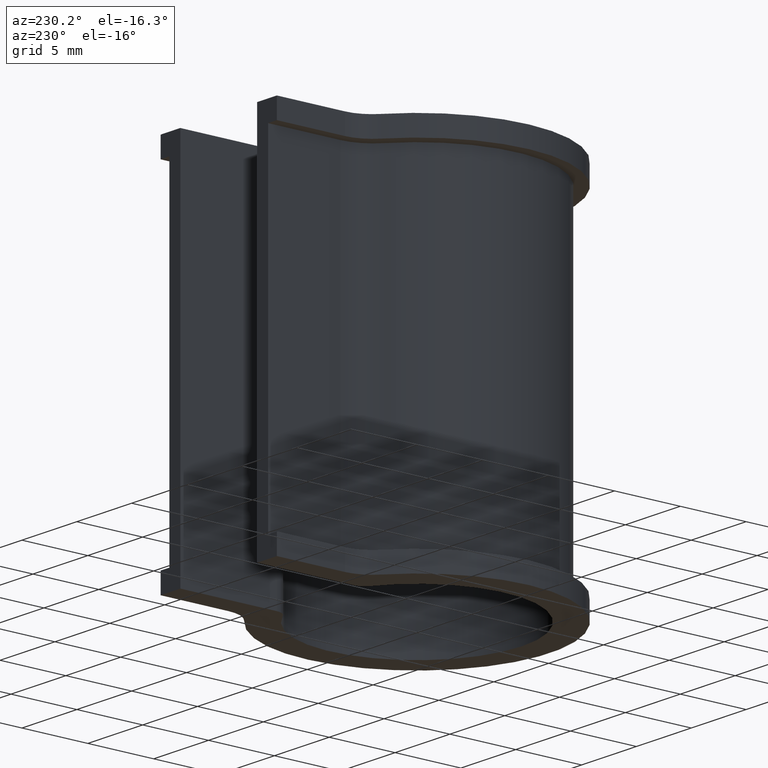
[diagram: clean part render]
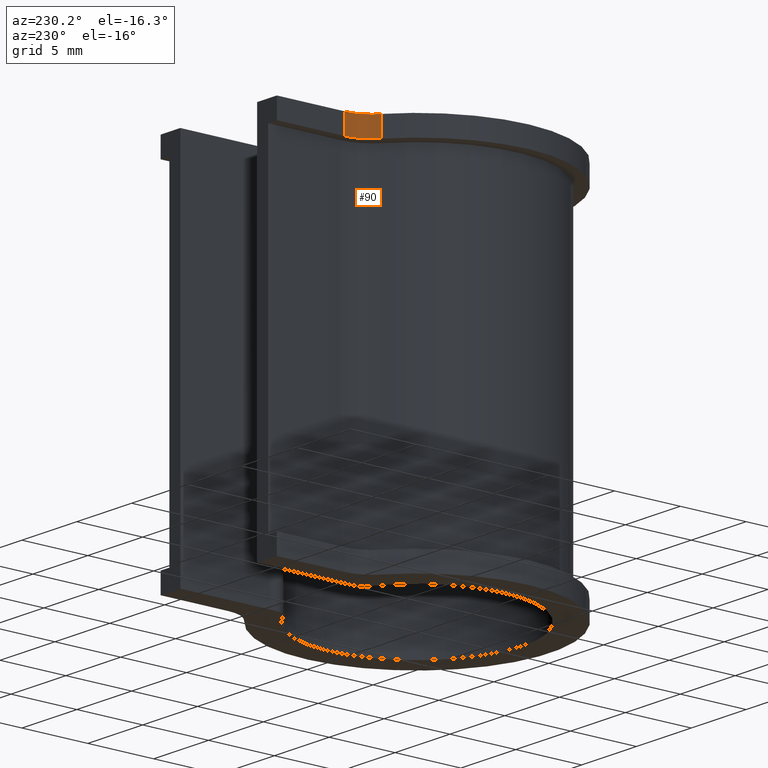
[diagram: same view with one face highlighted and labeled with its STEP entity id]
A machine part, auxiliary view. The second image highlights one B-rep face of the part: STEP entity #90.
In plain terms, the highlighted cylindrical surface (partial cylindrical patch) has radius 2.5 mm, axis along (0, 0, 1).
Its self-contained STEP definition (entity closure, byte-faithful):
#90 = ADVANCED_FACE( '', ( #132 ), #133, .F. );
#132 = FACE_OUTER_BOUND( '', #184, .T. );
#133 = CYLINDRICAL_SURFACE( '', #185, 2.50000000000000 );
#184 = EDGE_LOOP( '', ( #343, #344, #345, #346 ) );
#185 = AXIS2_PLACEMENT_3D( '', #347, #348, #349 );
#343 = ORIENTED_EDGE( '', *, *, #470, .F. );
#344 = ORIENTED_EDGE( '', *, *, #465, .F. );
#345 = ORIENTED_EDGE( '', *, *, #463, .F. );
#346 = ORIENTED_EDGE( '', *, *, #489, .F. );
#347 = CARTESIAN_POINT( '', ( -7.80000000000000, 9.88271723768317, 1.50000000000000 ) );
#348 = DIRECTION( '', ( 0.000000000000000, 0.000000000000000, 1.00000000000000 ) );
#349 = DIRECTION( '', ( -1.00000000000000, 0.000000000000000, 0.000000000000000 ) );
#463 = EDGE_CURVE( '', #565, #567, #568, .T. );
#465 = EDGE_CURVE( '', #567, #570, #571, .T. );
#470 = EDGE_CURVE( '', #570, #579, #580, .F. );
#489 = EDGE_CURVE( '', #579, #565, #606, .T. );
#565 = VERTEX_POINT( '', #709 );
#567 = VERTEX_POINT( '', #711 );
#568 = CIRCLE( '', #712, 2.50000000000000 );
#570 = VERTEX_POINT( '', #715 );
#571 = LINE( '', #716, #717 );
#579 = VERTEX_POINT( '', #727 );
#580 = CIRCLE( '', #728, 2.50000000000000 );
#606 = LINE( '', #766, #767 );
#709 = CARTESIAN_POINT( '', ( -6.25115170770453, 7.92030317142360, 0.000000000000000 ) );
#711 = CARTESIAN_POINT( '', ( -5.30000000000000, 9.88271723768317, 0.000000000000000 ) );
#712 = AXIS2_PLACEMENT_3D( '', #845, #846, #847 );
#715 = CARTESIAN_POINT( '', ( -5.30000000000000, 9.88271723768317, 1.50000000000000 ) );
#716 = CARTESIAN_POINT( '', ( -5.30000000000000, 9.88271723768317, 1.50000000000000 ) );
#717 = VECTOR( '', #849, 1000.00000000000 );
#727 = CARTESIAN_POINT( '', ( -6.25115170770453, 7.92030317142360, 1.50000000000000 ) );
#728 = AXIS2_PLACEMENT_3D( '', #858, #859, #860 );
#766 = CARTESIAN_POINT( '', ( -6.25115170770453, 7.92030317142360, 1.50000000000000 ) );
#767 = VECTOR( '', #891, 1000.00000000000 );
#845 = CARTESIAN_POINT( '', ( -7.80000000000000, 9.88271723768317, 0.000000000000000 ) );
#846 = DIRECTION( '', ( 0.000000000000000, 0.000000000000000, 1.00000000000000 ) );
#847 = DIRECTION( '', ( 1.00000000000000, 0.000000000000000, 0.000000000000000 ) );
#849 = DIRECTION( '', ( 0.000000000000000, 0.000000000000000, 1.00000000000000 ) );
#858 = CARTESIAN_POINT( '', ( -7.80000000000000, 9.88271723768317, 1.50000000000000 ) );
#859 = DIRECTION( '', ( 0.000000000000000, 0.000000000000000, 1.00000000000000 ) );
#860 = DIRECTION( '', ( 1.00000000000000, 0.000000000000000, 0.000000000000000 ) );
#891 = DIRECTION( '', ( 0.000000000000000, 0.000000000000000, -1.00000000000000 ) );